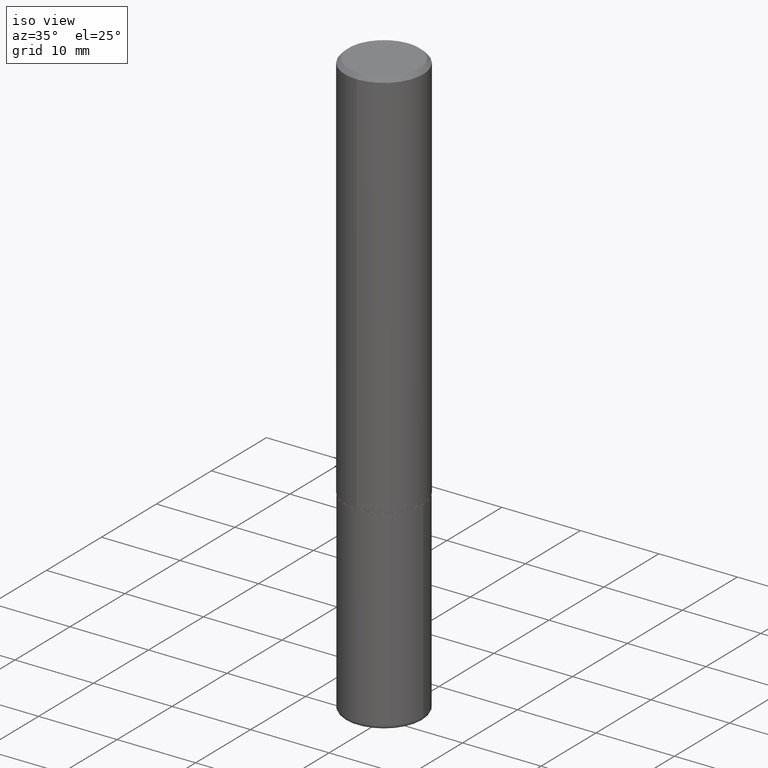
[diagram: clean part render]
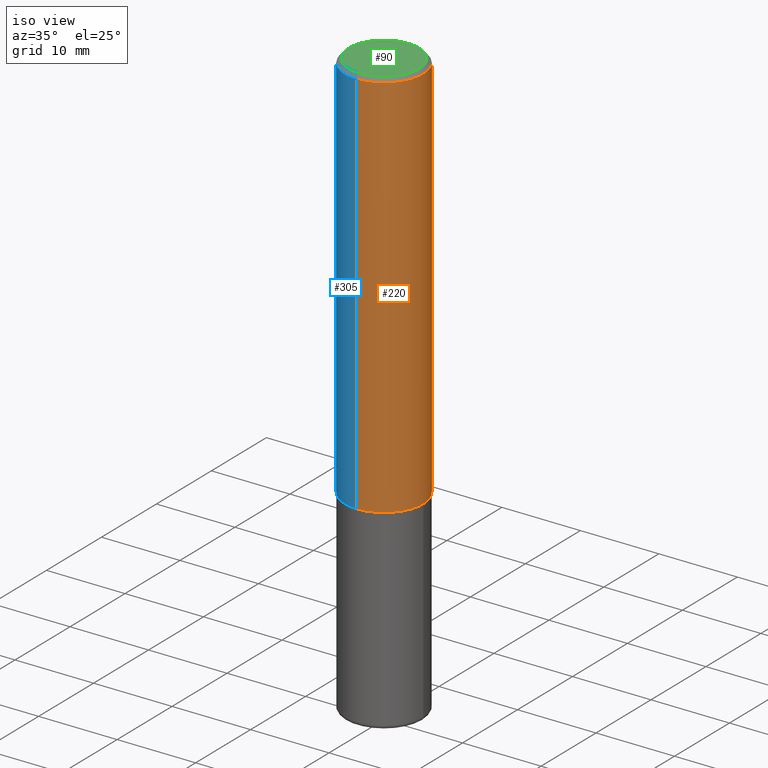
[diagram: same view with three faces highlighted in distinct colors, each labeled with its STEP entity id]
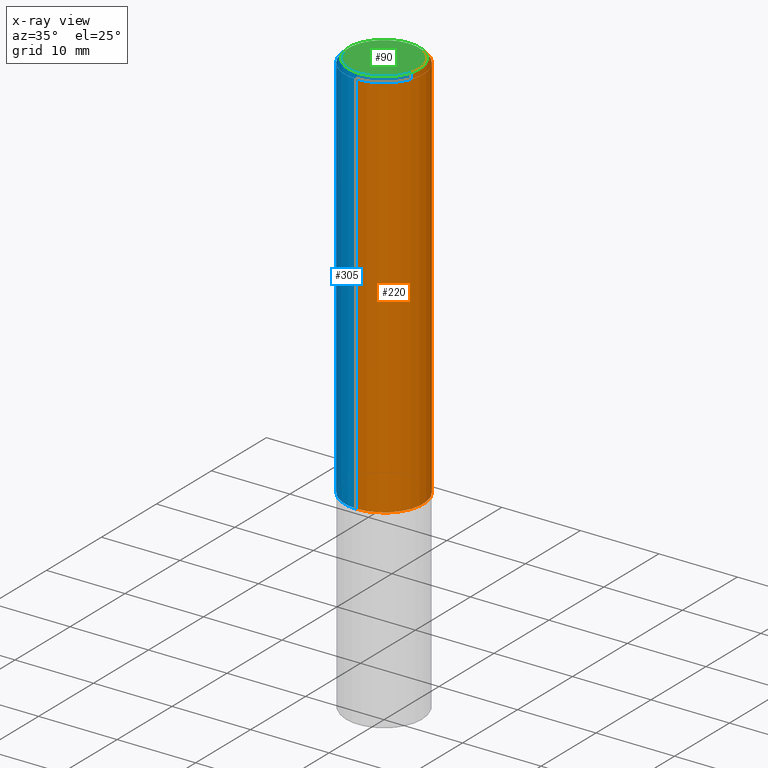
[diagram: x-ray of the same camera — body ghosted, the three highlighted faces saturated]
A machine part, iso view with three faces highlighted in distinct colors.
The next image is the same camera in x-ray (body ghosted, the three faces saturated) — at least one of them is partly hidden behind the body in this view.
Their STEP definitions:

[orange] entity #220 — the highlighted cylindrical surface (partial cylindrical patch) has radius 5 mm, axis along (-0, 0, 1).
#28 = CIRCLE ( 'NONE', #121, 0.1968500000000002470 ) ;
#44 = FACE_OUTER_BOUND ( 'NONE', #278, .T. ) ;
#77 = DIRECTION ( 'NONE',  ( -6.982962677686265133E-15, -1.000000000000000000, 3.491137977679279029E-15 ) ) ;
#78 = AXIS2_PLACEMENT_3D ( 'NONE', #207, #335, #299 ) ;
#79 = CARTESIAN_POINT ( 'NONE',  ( -1.350489030861325626E-15, -0.1968500000000001082, -0.01999999999999935510 ) ) ;
#92 = AXIS2_PLACEMENT_3D ( 'NONE', #371, #240, #77 ) ;
#108 = CYLINDRICAL_SURFACE ( 'NONE', #78, 0.1968500000000001360 ) ;
#109 = CARTESIAN_POINT ( 'NONE',  ( -1.374596203102495065E-15, -0.1968500000000071026, -1.967499999999998916 ) ) ;
#119 = ORIENTED_EDGE ( 'NONE', *, *, #144, .T. ) ;
#121 = AXIS2_PLACEMENT_3D ( 'NONE', #290, #265, #292 ) ;
#143 = LINE ( 'NONE', #402, #249 ) ;
#144 = EDGE_CURVE ( 'NONE', #188, #414, #28, .T. ) ;
#180 = VERTEX_POINT ( 'NONE', #79 ) ;
#188 = VERTEX_POINT ( 'NONE', #109 ) ;
#192 = EDGE_CURVE ( 'NONE', #180, #363, #362, .T. ) ;
#207 = CARTESIAN_POINT ( 'NONE',  ( 0.000000000000000000, 0.000000000000000000, 0.000000000000000000 ) ) ;
#220 = ADVANCED_FACE ( 'NONE', ( #44 ), #108, .T. ) ;
#240 = DIRECTION ( 'NONE',  ( -2.445268841296851437E-29, 3.491767699944464545E-15, 1.000000000000000000 ) ) ;
#246 = ORIENTED_EDGE ( 'NONE', *, *, #192, .F. ) ;
#249 = VECTOR ( 'NONE', #373, 39.37007874015748143 ) ;
#252 = CARTESIAN_POINT ( 'NONE',  ( 1.398703375343782440E-15, 0.1968499999999933914, -1.967500000000000471 ) ) ;
#265 = DIRECTION ( 'NONE',  ( -2.445268841296851437E-29, 3.491767699944464545E-15, 1.000000000000000000 ) ) ;
#278 = EDGE_LOOP ( 'NONE', ( #119, #347, #246, #316 ) ) ;
#290 = CARTESIAN_POINT ( 'NONE',  ( 4.811066445251554069E-29, -6.870052949640732965E-15, -1.967499999999999805 ) ) ;
#292 = DIRECTION ( 'NONE',  ( -6.982962677686265922E-15, -1.000000000000000000, 4.163344669033670112E-15 ) ) ;
#299 = DIRECTION ( 'NONE',  ( -6.982962677686265922E-15, -1.000000000000000000, 3.491767699944464545E-15 ) ) ;
#312 = CARTESIAN_POINT ( 'NONE',  ( 1.374596203102542200E-15, 0.1968499999999999694, -0.02000000000000072900 ) ) ;
#316 = ORIENTED_EDGE ( 'NONE', *, *, #390, .F. ) ;
#323 = EDGE_CURVE ( 'NONE', #414, #363, #143, .T. ) ;
#335 = DIRECTION ( 'NONE',  ( -2.445268841296851437E-29, 3.491767699944464545E-15, 1.000000000000000000 ) ) ;
#347 = ORIENTED_EDGE ( 'NONE', *, *, #323, .T. ) ;
#362 = CIRCLE ( 'NONE', #92, 0.1968500000000000527 ) ;
#363 = VERTEX_POINT ( 'NONE', #312 ) ;
#371 = CARTESIAN_POINT ( 'NONE',  ( 4.890537682593712927E-31, -6.983535399888942699E-17, -0.02000000000000004205 ) ) ;
#373 = DIRECTION ( 'NONE',  ( -2.445268841296851437E-29, 3.491767699944464940E-15, 1.000000000000000000 ) ) ;
#374 = VECTOR ( 'NONE', #382, 39.37007874015748143 ) ;
#382 = DIRECTION ( 'NONE',  ( -2.445268841296851437E-29, 3.491767699944464940E-15, 1.000000000000000000 ) ) ;
#390 = EDGE_CURVE ( 'NONE', #188, #180, #411, .T. ) ;
#402 = CARTESIAN_POINT ( 'NONE',  ( 1.398703375343757985E-15, 0.1968500000000001360, -6.873544717340683232E-16 ) ) ;
#406 = CARTESIAN_POINT ( 'NONE',  ( -1.374596203102542397E-15, -0.1968500000000001360, 6.873544717340683232E-16 ) ) ;
#411 = LINE ( 'NONE', #406, #374 ) ;
#414 = VERTEX_POINT ( 'NONE', #252 ) ;

[blue] entity #305 — the highlighted cylindrical surface (partial cylindrical patch) has radius 5 mm, axis along (-0, 0, 1).
#7 = DIRECTION ( 'NONE',  ( -6.982962677686265133E-15, -1.000000000000000000, 3.491137977679279029E-15 ) ) ;
#47 = AXIS2_PLACEMENT_3D ( 'NONE', #357, #392, #7 ) ;
#79 = CARTESIAN_POINT ( 'NONE',  ( -1.350489030861325626E-15, -0.1968500000000001082, -0.01999999999999935510 ) ) ;
#105 = DIRECTION ( 'NONE',  ( -6.982962677686265922E-15, -1.000000000000000000, 4.163344669033670112E-15 ) ) ;
#109 = CARTESIAN_POINT ( 'NONE',  ( -1.374596203102495065E-15, -0.1968500000000071026, -1.967499999999998916 ) ) ;
#110 = EDGE_CURVE ( 'NONE', #363, #180, #232, .T. ) ;
#143 = LINE ( 'NONE', #402, #249 ) ;
#154 = EDGE_CURVE ( 'NONE', #414, #188, #158, .T. ) ;
#158 = CIRCLE ( 'NONE', #300, 0.1968500000000002470 ) ;
#176 = CARTESIAN_POINT ( 'NONE',  ( 0.000000000000000000, 0.000000000000000000, 0.000000000000000000 ) ) ;
#180 = VERTEX_POINT ( 'NONE', #79 ) ;
#184 = ORIENTED_EDGE ( 'NONE', *, *, #323, .F. ) ;
#188 = VERTEX_POINT ( 'NONE', #109 ) ;
#201 = DIRECTION ( 'NONE',  ( -6.982962677686265922E-15, -1.000000000000000000, 3.491767699944464545E-15 ) ) ;
#232 = CIRCLE ( 'NONE', #47, 0.1968500000000000527 ) ;
#249 = VECTOR ( 'NONE', #373, 39.37007874015748143 ) ;
#252 = CARTESIAN_POINT ( 'NONE',  ( 1.398703375343782440E-15, 0.1968499999999933914, -1.967500000000000471 ) ) ;
#258 = CARTESIAN_POINT ( 'NONE',  ( 4.811066445251554069E-29, -6.870052949640732965E-15, -1.967499999999999805 ) ) ;
#300 = AXIS2_PLACEMENT_3D ( 'NONE', #258, #399, #105 ) ;
#301 = DIRECTION ( 'NONE',  ( -2.445268841296851437E-29, 3.491767699944464545E-15, 1.000000000000000000 ) ) ;
#305 = ADVANCED_FACE ( 'NONE', ( #401 ), #337, .T. ) ;
#312 = CARTESIAN_POINT ( 'NONE',  ( 1.374596203102542200E-15, 0.1968499999999999694, -0.02000000000000072900 ) ) ;
#323 = EDGE_CURVE ( 'NONE', #414, #363, #143, .T. ) ;
#326 = ORIENTED_EDGE ( 'NONE', *, *, #390, .T. ) ;
#337 = CYLINDRICAL_SURFACE ( 'NONE', #379, 0.1968500000000001360 ) ;
#345 = ORIENTED_EDGE ( 'NONE', *, *, #154, .T. ) ;
#357 = CARTESIAN_POINT ( 'NONE',  ( 4.890537682593712927E-31, -6.983535399888942699E-17, -0.02000000000000004205 ) ) ;
#363 = VERTEX_POINT ( 'NONE', #312 ) ;
#373 = DIRECTION ( 'NONE',  ( -2.445268841296851437E-29, 3.491767699944464940E-15, 1.000000000000000000 ) ) ;
#374 = VECTOR ( 'NONE', #382, 39.37007874015748143 ) ;
#379 = AXIS2_PLACEMENT_3D ( 'NONE', #176, #301, #201 ) ;
#380 = ORIENTED_EDGE ( 'NONE', *, *, #110, .F. ) ;
#382 = DIRECTION ( 'NONE',  ( -2.445268841296851437E-29, 3.491767699944464940E-15, 1.000000000000000000 ) ) ;
#390 = EDGE_CURVE ( 'NONE', #188, #180, #411, .T. ) ;
#392 = DIRECTION ( 'NONE',  ( -2.445268841296851437E-29, 3.491767699944464545E-15, 1.000000000000000000 ) ) ;
#399 = DIRECTION ( 'NONE',  ( -2.445268841296851437E-29, 3.491767699944464545E-15, 1.000000000000000000 ) ) ;
#401 = FACE_OUTER_BOUND ( 'NONE', #417, .T. ) ;
#402 = CARTESIAN_POINT ( 'NONE',  ( 1.398703375343757985E-15, 0.1968500000000001360, -6.873544717340683232E-16 ) ) ;
#406 = CARTESIAN_POINT ( 'NONE',  ( -1.374596203102542397E-15, -0.1968500000000001360, 6.873544717340683232E-16 ) ) ;
#411 = LINE ( 'NONE', #406, #374 ) ;
#414 = VERTEX_POINT ( 'NONE', #252 ) ;
#417 = EDGE_LOOP ( 'NONE', ( #184, #345, #326, #380 ) ) ;

[green] entity #90 — the highlighted planar face has unit normal (0, -0, -1).
#26 = ORIENTED_EDGE ( 'NONE', *, *, #375, .T. ) ;
#45 = DIRECTION ( 'NONE',  ( -6.982962677686265922E-15, -1.000000000000000000, 3.491767699944464940E-15 ) ) ;
#56 = DIRECTION ( 'NONE',  ( -6.982962677686265922E-15, -1.000000000000000000, 3.491767699944464940E-15 ) ) ;
#66 = CARTESIAN_POINT ( 'NONE',  ( 1.234936949548815012E-15, 0.1768499999999998407, -5.065124715121833152E-16 ) ) ;
#67 = PLANE ( 'NONE',  #274 ) ;
#73 = CARTESIAN_POINT ( 'NONE',  ( 1.304766576325678705E-15, 0.1768499999999998407, -3.955058252891884244E-16 ) ) ;
#89 = VERTEX_POINT ( 'NONE', #73 ) ;
#90 = ADVANCED_FACE ( 'NONE', ( #231 ), #67, .F. ) ;
#128 = DIRECTION ( 'NONE',  ( 2.445268841296850876E-29, -3.491767699944464940E-15, -1.000000000000000000 ) ) ;
#129 = AXIS2_PLACEMENT_3D ( 'NONE', #250, #161, #56 ) ;
#156 = VERTEX_POINT ( 'NONE', #267 ) ;
#161 = DIRECTION ( 'NONE',  ( -2.445268841296851437E-29, 3.491767699944464545E-15, 1.000000000000000000 ) ) ;
#163 = DIRECTION ( 'NONE',  ( 6.982962677686265922E-15, 1.000000000000000000, -3.491767699944464940E-15 ) ) ;
#181 = EDGE_CURVE ( 'NONE', #156, #89, #226, .T. ) ;
#222 = ORIENTED_EDGE ( 'NONE', *, *, #181, .T. ) ;
#226 = CIRCLE ( 'NONE', #262, 0.1768499999999998407 ) ;
#231 = FACE_OUTER_BOUND ( 'NONE', #270, .T. ) ;
#250 = CARTESIAN_POINT ( 'NONE',  ( -5.428821863719041386E-45, 7.752188435212310874E-31, 2.220132924459896583E-16 ) ) ;
#262 = AXIS2_PLACEMENT_3D ( 'NONE', #302, #272, #45 ) ;
#267 = CARTESIAN_POINT ( 'NONE',  ( -1.281884050883609900E-15, -0.1768499999999998407, 8.395324101811677409E-16 ) ) ;
#270 = EDGE_LOOP ( 'NONE', ( #26, #222 ) ) ;
#272 = DIRECTION ( 'NONE',  ( -2.445268841296851437E-29, 3.491767699944464545E-15, 1.000000000000000000 ) ) ;
#274 = AXIS2_PLACEMENT_3D ( 'NONE', #66, #128, #163 ) ;
#302 = CARTESIAN_POINT ( 'NONE',  ( -5.428821863719041386E-45, 7.752188435212310874E-31, 2.220132924459896583E-16 ) ) ;
#375 = EDGE_CURVE ( 'NONE', #89, #156, #408, .T. ) ;
#408 = CIRCLE ( 'NONE', #129, 0.1768499999999998407 ) ;